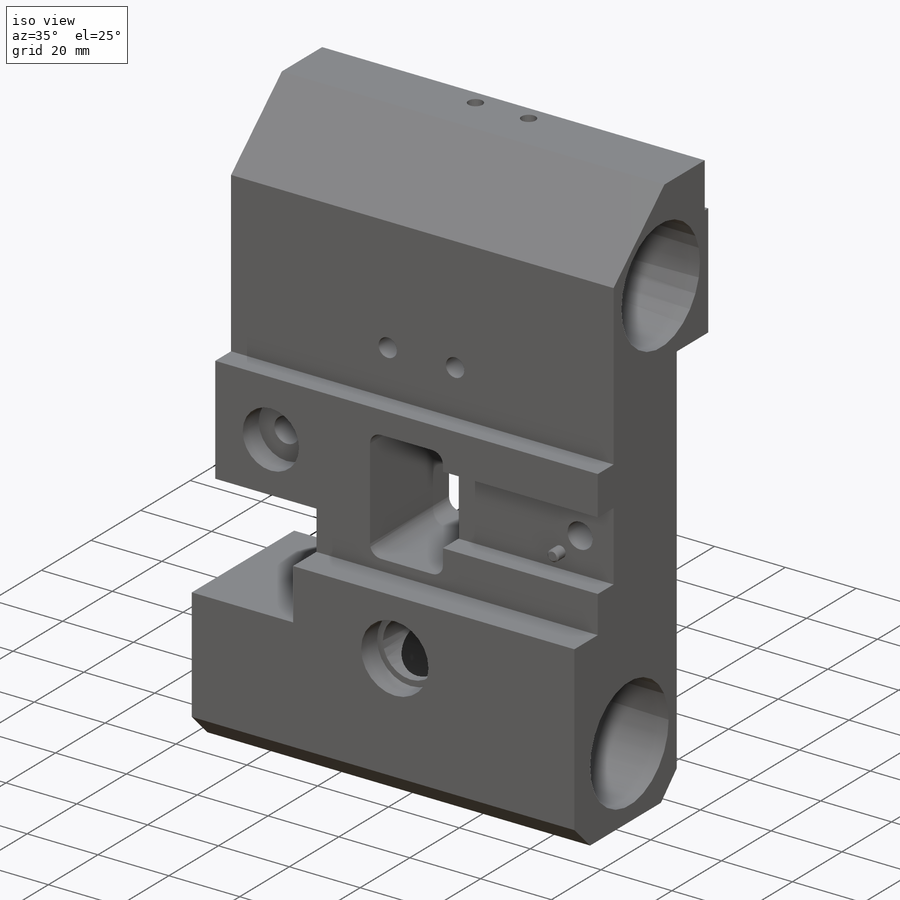
[diagram: iso view]
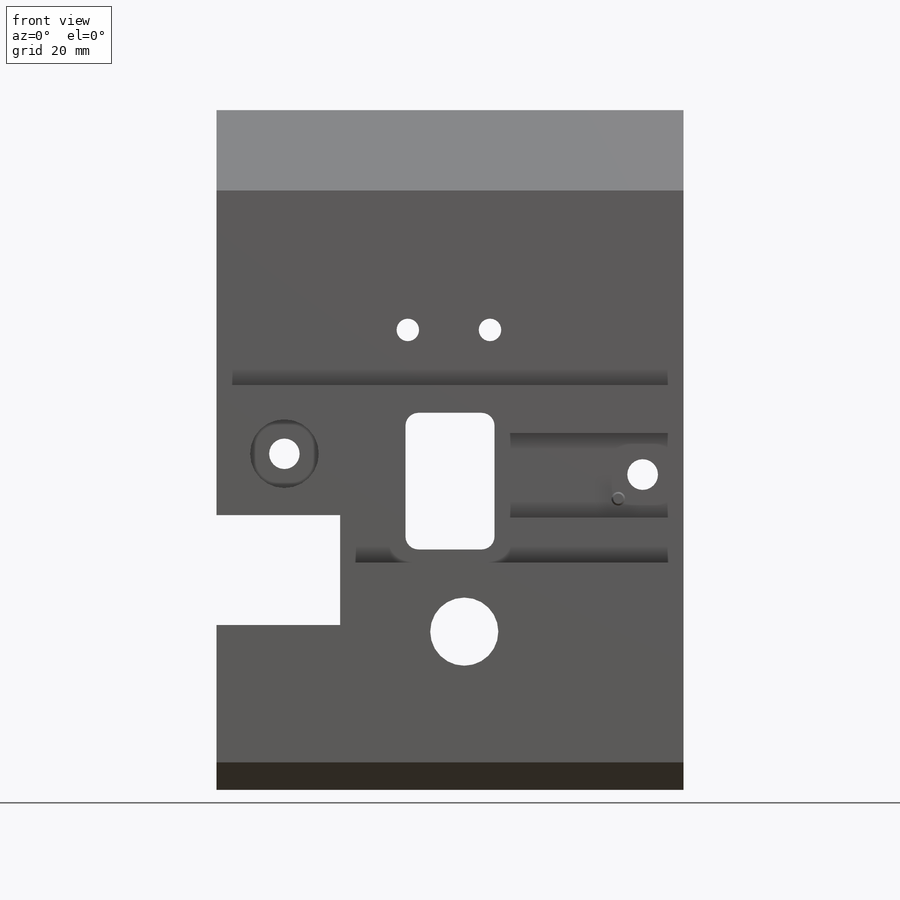
[diagram: front view]
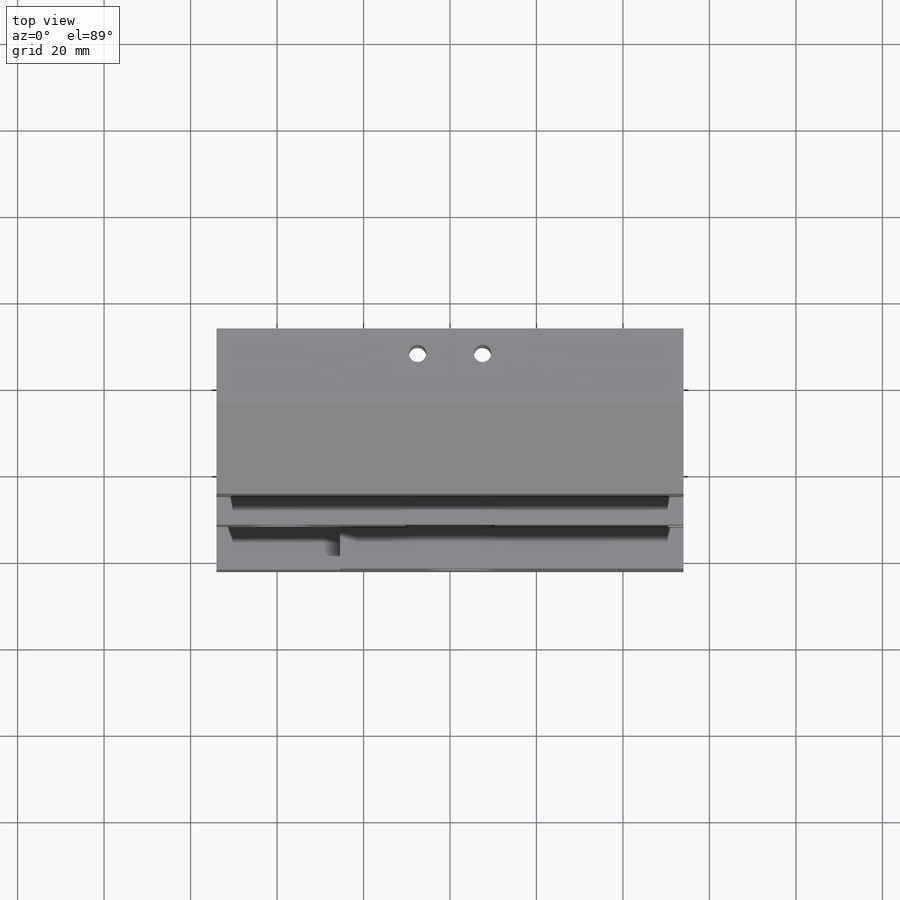
[diagram: top view]
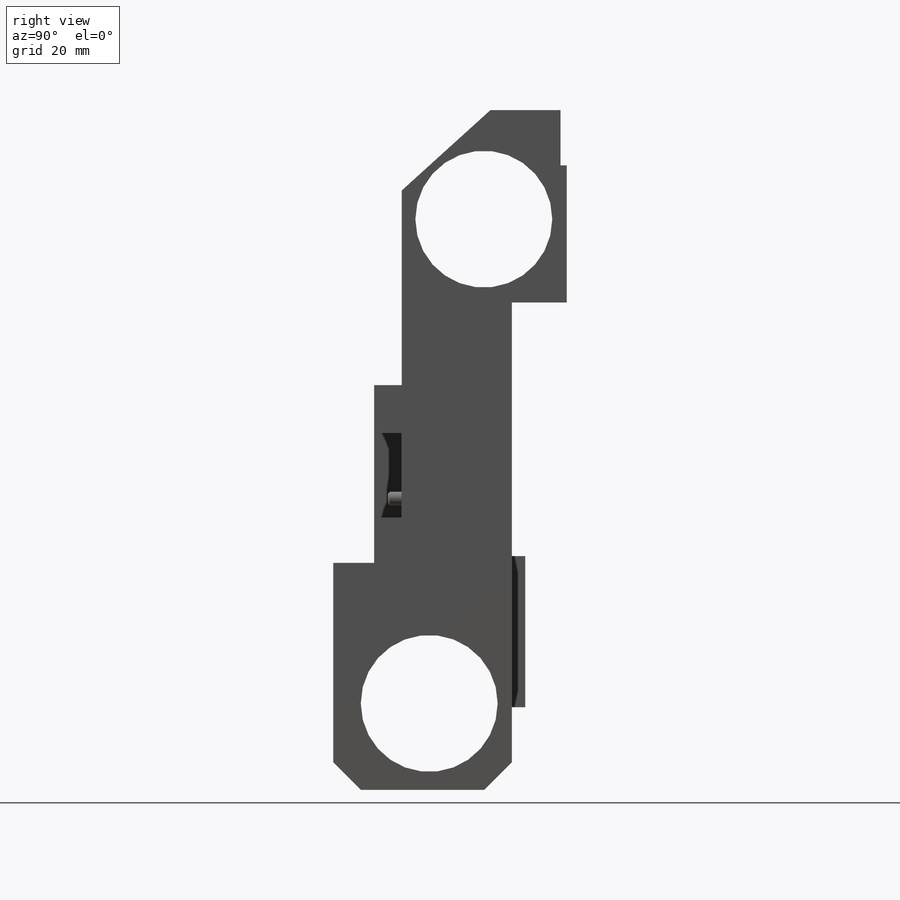
[diagram: right view]
SOLIDWORKS PART (.sldprt)
format: sldprt  version: not decoded by parser v0  size: 949,760 bytes
history: native  units: mm
features: sketch x19, cut_extrude x16, extrude x3, chamfer x2, material x1 (+16 scaffold rows collapsed)
feature tree (57):
  scaffold x16  (default folders/planes/origin — collapsed)
  material  "1060 Alloy"
  sketch  "Sketch1"  dims[c1.D19=31.53mm c1.D14=31.66mm c1.D1=41.28mm c1.D2=38.15mm c1.D3=157.2mm c1.D4=12.82mm c1.D5=2.84mm c1.D6=31.69mm c1.D7=25.46mm c1.D8=31.83mm c1.D9=44.51mm c2.D4=44.48mm c2.D9=52.5mm c2.D10=93.61mm c2.D11=9.0mm c2.D12=112.72mm c3.D12=90.0deg c4.D12=9.91mm c4.D13=41.44mm c4.D14=~15.770019mm c5.D12=9.91mm c5.D14=41.44mm c5.D13=16.22mm c5.D15=45.0mm c5.D16=3.27mm c5.D17=6.35mm c5.D18=4.17mm c5.D5=1.42mm c6.D12=12.625mm c6.D19=111.985mm]
  extrude  "Boss-Extrude1"  Depth=54mm
  sketch  "Sketch2"  dims[D1=3.0mm D17=18.84mm D18=15.75mm D20=8.85mm D21=5.2mm D22=7.05mm D23=11.1mm D24=7.1mm D25=11.0mm D2=43.7mm D3=43.7mm D4=55.6mm D5=70.0mm D6=38.13mm D7=25.4mm D8=28.6mm D9=15.7mm D10=44.25mm D11=63.25mm D12=9.45mm D13=50.7mm D14=35.0mm D15=6.35mm D16=39.8mm D19=76.125mm]
  cut_extrude  "Cut-Extrude1"  [1 undecoded]
  sketch  "Sketch3"  dims[D1=10.5mm D2=19.52mm]
  cut_extrude  "Cut-Extrude2"  Depth=6.36mm
  sketch  "Sketch4"  dims[D1=3.17mm D2=13.5mm D3=13.6mm]
  extrude  "Boss-Extrude2"  Depth=3.15mm
  sketch  "Sketch10"  dims[D1=0.0mm]
  cut_extrude  "Cut-Extrude6"  Depth=20mm
  sketch  "Sketch11"  dims[D1=10.84mm D2=11.0mm D3=9.1mm]
  cut_extrude  "Cut-Extrude7"  Depth=6.56mm
  chamfer  "Chamfer1"  Distance=0.4mm Angle=45deg
  sketch  "Sketch5"  dims[D1=15.89mm]
  cut_extrude  "Cut-Extrude3"  Depth=6.44mm
  sketch  "Sketch6"  dims[D1=18.99mm]
  cut_extrude  "Cut-Extrude4"  Depth=6.44mm
  sketch  "Sketch7"  dims[D1=8.77mm D2=34.96mm D3=58.65mm]
  extrude  "Boss-Extrude3"  Depth=3.1mm
  sketch  "Sketch8"  dims[c1.D2=4.0mm c1.D1=2.0mm c2.D2=~6.577327mm c2.D1=4.0mm c2.D3=4.71mm c2.D4=30.025mm]
  cut_extrude  "Cut-Extrude5"  Depth=15mm
  cut_extrude  "Cut-Extrude8"  [1 undecoded]
  sketch  "Sketch11<3>"  dims[D1=5.45mm]
  sketch  "Sketch12"  dims[D1=18.95mm]
  cut_extrude  "Cut-Extrude9"  Depth=5.15mm
  sketch  "Sketch13"  dims[c1.D3=4.0mm c1.D1=51.0mm c1.D2=19.0mm c2.D3=40.5mm c2.D4=67.2mm c2.D5=33.0mm c2.D1=51.0mm c2.D6=0.2mm c2.D7=74.3mm]
  sketch  "Sketch14"  dims[D1=53.8mm D2=6.5mm]
  cut_extrude  "Cut-Extrude10"  Depth=10mm
  cut_extrude  "Cut-Extrude11"  Depth=10mm
  chamfer  "Axis2"  [1 undecoded]
  sketch  "Sketch15"  dims[D3=4.0mm D1=25.4mm D2=19.05mm D4=15.0mm D5=6.0mm]
  cut_extrude  "Cut-Extrude12"  [1 undecoded]
  sketch  "Sketch16"  dims[D1=4.0mm]
  cut_extrude  "Cut-Extrude13"  Depth=25mm
  sketch  "Sketch17"  dims[D1=4.0mm]
  cut_extrude  "Cut-Extrude14"  Depth=25mm
  sketch  "Sketch18"  dims[D1=4.0mm D2=15.0mm]
  cut_extrude  "Cut-Extrude15"  [1 undecoded]
  sketch  "Sketch19"
  cut_extrude  "Cut-Extrude16"  Depth=20mm
decode coverage: 34 of 40 modeling features carry decoded parameters
note: ~ marks probable driven/reference dimensions
note: 5 parameter values undecoded
summary: no parameter record found for 5 features
note: suppression state not decoded; provenance and decode notes live in map.json
